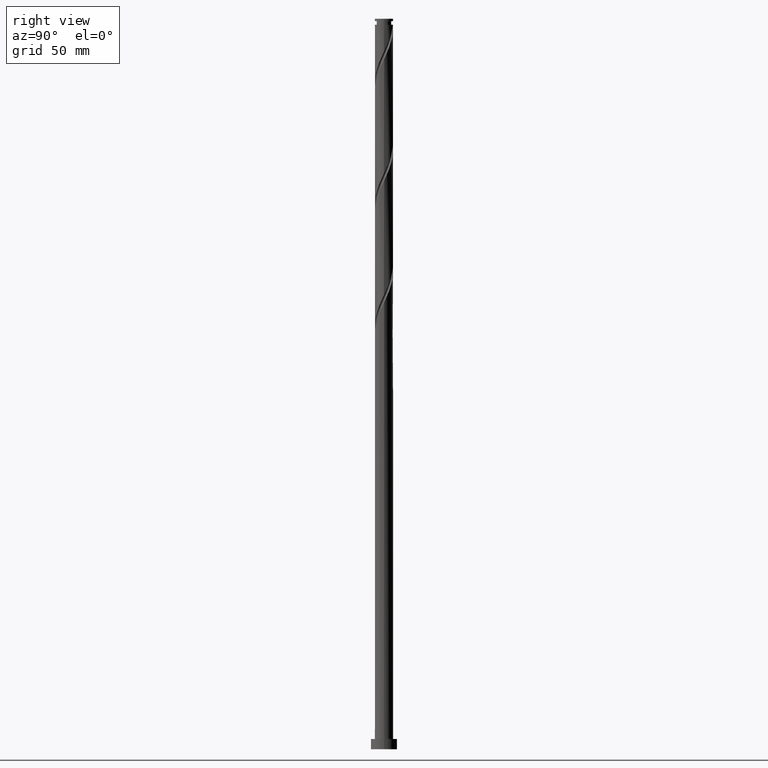
[diagram: clean part render]
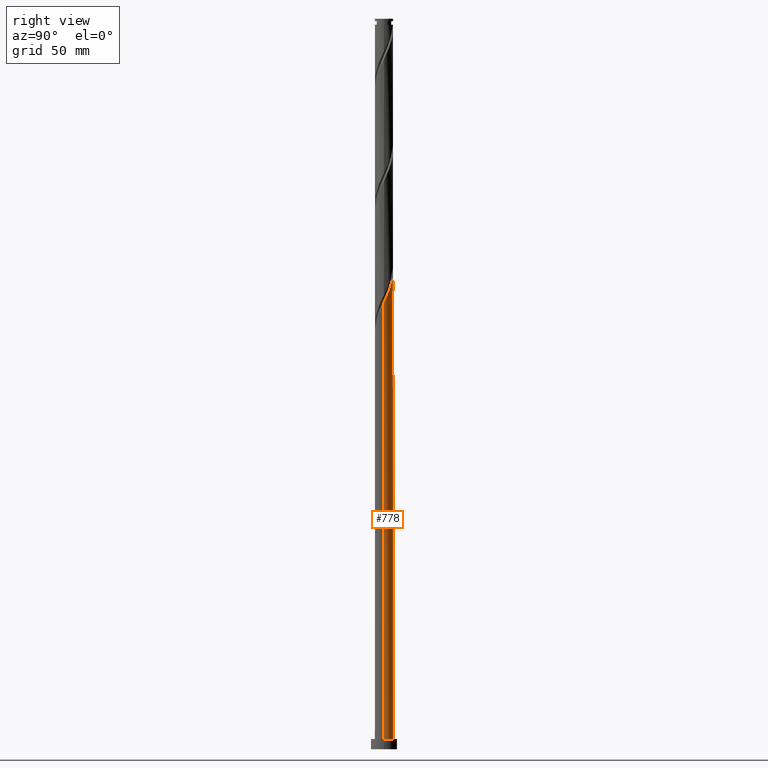
[diagram: same view with one face highlighted and labeled with its STEP entity id]
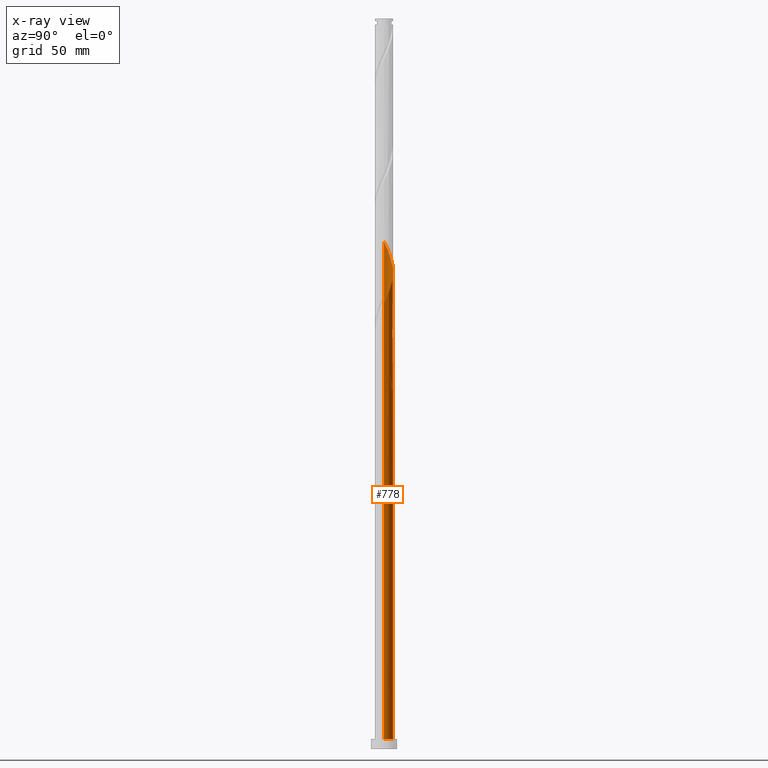
[diagram: x-ray of the same camera — body ghosted, the highlighted face saturated]
A machine part, right view. The second image highlights one B-rep face of the part: STEP entity #778.
The next image is the same camera in x-ray: the body ghosted, the highlighted face saturated — about 0% of this face is hidden behind the body in this view.
In plain terms, the highlighted cylindrical surface (edge-blend (fillet) strip) has radius 6.25 mm, axis along (-0, -0, -1).
Its self-contained STEP definition (entity closure, byte-faithful):
#6 = CARTESIAN_POINT ( 'NONE',  ( -3.492996683547016534, 5.182805627141505056, 334.4116905604971066 ) ) ;
#38 = VERTEX_POINT ( 'NONE', #340 ) ;
#53 = CARTESIAN_POINT ( 'NONE',  ( -1.194875362925336582, 6.134718646121764429, 251.0783572271637638 ) ) ;
#68 = CARTESIAN_POINT ( 'NONE',  ( -5.550432561628097616, 2.938388396464533425, 257.5887738938304210 ) ) ;
#72 = CARTESIAN_POINT ( 'NONE',  ( 6.125000000000008882, 1.243734296383278704, 308.3700238938304210 ) ) ;
#83 = CARTESIAN_POINT ( 'NONE',  ( 0.000000000000000000, 0.000000000000000000, 7.000000000000000000 ) ) ;
#95 = CARTESIAN_POINT ( 'NONE',  ( 5.764669318085877237, 2.414764512974176824, 310.9741905604970498 ) ) ;
#100 = CARTESIAN_POINT ( 'NONE',  ( -4.436994950466251808, 4.401769622496965795, 253.6825238938303926 ) ) ;
#130 = ORIENTED_EDGE ( 'NONE', *, *, #2038, .T. ) ;
#135 = ORIENTED_EDGE ( 'NONE', *, *, #280, .T. ) ;
#157 = CARTESIAN_POINT ( 'NONE',  ( -6.017033694790354659, 1.799092411583237183, 343.5262738938304210 ) ) ;
#217 = CARTESIAN_POINT ( 'NONE',  ( 0.6404744508206482445, 6.247497136254223982, 247.1721072271638491 ) ) ;
#231 = ORIENTED_EDGE ( 'NONE', *, *, #1188, .T. ) ;
#233 = CARTESIAN_POINT ( 'NONE',  ( -5.210481989734504715, 3.451576079800712904, 256.2866905604970498 ) ) ;
#238 = DIRECTION ( 'NONE',  ( -0.000000000000000000, -0.000000000000000000, -1.000000000000000000 ) ) ;
#250 = CARTESIAN_POINT ( 'NONE',  ( -3.964763763136888386, 4.870531417840910038, 257.5887738938304210 ) ) ;
#280 = EDGE_CURVE ( 'NONE', #1926, #1930, #961, .T. ) ;
#300 = ORIENTED_EDGE ( 'NONE', *, *, #1347, .F. ) ;
#304 = CARTESIAN_POINT ( 'NONE',  ( -6.250000000000009770, 7.460911258558398260E-15, 347.3798269158335188 ) ) ;
#313 = CARTESIAN_POINT ( 'NONE',  ( -2.982534884002442155, 5.526835772425972237, 333.1096072271637922 ) ) ;
#324 = CARTESIAN_POINT ( 'NONE',  ( -2.414764512974176824, 5.764669318085877237, 331.8075238938304210 ) ) ;
#331 = DIRECTION ( 'NONE',  ( -0.000000000000000000, -0.000000000000000000, -1.000000000000000000 ) ) ;
#340 = CARTESIAN_POINT ( 'NONE',  ( -6.250000000000009770, 7.460911258558398260E-15, 264.0464935825003181 ) ) ;
#373 = CARTESIAN_POINT ( 'NONE',  ( -1.799092411583232298, 6.017033694790346665, 252.3804405604971066 ) ) ;
#388 = CYLINDRICAL_SURFACE ( 'NONE', #1640, 6.250000000000000000 ) ;
#404 = CARTESIAN_POINT ( 'NONE',  ( -5.182805627141497062, 3.492996683547012982, 261.4950238938303642 ) ) ;
#409 = CARTESIAN_POINT ( 'NONE',  ( -5.783733128209226138, 2.368740404023883528, 258.8908572271637354 ) ) ;
#424 = CARTESIAN_POINT ( 'NONE',  ( 6.249950366853710193, 0.02490806827659989078, 305.7658572271636785 ) ) ;
#426 =( BOUNDED_CURVE ( )  B_SPLINE_CURVE ( 2, ( #566, #545, #1218, #1868, #1196, #1039, #100, #1686, #233, #68, #409, #883, #717, #1206, #1369 ),
 .UNSPECIFIED., .F., .T. ) 
 B_SPLINE_CURVE_WITH_KNOTS ( ( 3, 2, 2, 2, 2, 2, 2, 3 ),
 ( 0.000000000000000000, 0.007812500000000000000, 0.01562500000000000000, 0.02343750000000000347, 0.03125000000000000000, 0.03906250000000000000, 0.04687500000000000694, 0.05452869021808727512 ),
 .UNSPECIFIED. ) 
 CURVE ( )  GEOMETRIC_REPRESENTATION_ITEM ( )  RATIONAL_B_SPLINE_CURVE ( ( 0.9090909090909468082, 0.9047133878838528043, 0.9090909090909468082, 0.9047133878838528043, 0.9090909090909468082, 0.9047133878838528043, 0.9090909090909468082, 0.9047133878838528043, 0.9090909090909468082, 0.9047133878838528043, 0.9090909090909468082, 0.9047133878838528043, 0.9090909090909468082, 0.9048023726119446275, 0.9089165573359502259 ) ) 
 REPRESENTATION_ITEM ( '' )  );
#436 = CARTESIAN_POINT ( 'NONE',  ( 6.250000000000008882, 7.878409165607379030E-15, 305.7131602491668900 ) ) ;
#482 = CARTESIAN_POINT ( 'NONE',  ( -6.250000000000009770, 7.460911258558398260E-15, 347.3798269158335188 ) ) ;
#494 = CARTESIAN_POINT ( 'NONE',  ( -5.550432561628097616, 2.938388396464533425, 340.9221072271638491 ) ) ;
#529 = CARTESIAN_POINT ( 'NONE',  ( -2.938388396464528540, 5.550432561628093175, 254.9846072271638207 ) ) ;
#541 = CARTESIAN_POINT ( 'NONE',  ( -5.764669318085871019, 2.414764512974175492, 264.0991905604970498 ) ) ;
#545 = CARTESIAN_POINT ( 'NONE',  ( -1.846994141945911938, 6.002502863745784900, 247.1721072271638207 ) ) ;
#562 = CARTESIAN_POINT ( 'NONE',  ( -6.249950366853703088, 0.02490806827660372799, 269.3075238938303642 ) ) ;
#566 = CARTESIAN_POINT ( 'NONE',  ( -1.243734296383278481, 6.125000000000008882, 245.8700238938303926 ) ) ;
#579 = CARTESIAN_POINT ( 'NONE',  ( 3.451576079800713792, 5.210481989734502939, 318.7866905604970498 ) ) ;
#606 = CARTESIAN_POINT ( 'NONE',  ( 6.250000000000000000, 7.654042494670957606E-16, 7.000000000000000000 ) ) ;
#610 = CARTESIAN_POINT ( 'NONE',  ( -5.783733128209226138, 2.368740404023883528, 342.2241905604970498 ) ) ;
#643 =( BOUNDED_CURVE ( )  B_SPLINE_CURVE ( 2, ( #749, #889, #562, #2004, #1995, #1691, #541, #1213, #404, #1842, #713, #250, #1671, #529, #1864, #373, #53, #2029, #1058, #217, #739 ),
 .UNSPECIFIED., .F., .T. ) 
 B_SPLINE_CURVE_WITH_KNOTS ( ( 3, 2, 2, 2, 2, 2, 2, 2, 2, 2, 3 ),
 ( 0.9295286902180875943, 0.9296875000000000000, 0.9375000000000000000, 0.9453125000000000000, 0.9531250000000000000, 0.9609375000000000000, 0.9687500000000000000, 0.9765625000000000000, 0.9843750000000000000, 0.9921875000000000000, 1.000000000000000000 ),
 .UNSPECIFIED. ) 
 CURVE ( )  GEOMETRIC_REPRESENTATION_ITEM ( )  RATIONAL_B_SPLINE_CURVE ( ( 0.9089165573359447858, 0.9090019243628493228, 0.9090909090909409240, 0.9047133878838470311, 0.9090909090909409240, 0.9047133878838470311, 0.9090909090909409240, 0.9047133878838470311, 0.9090909090909409240, 0.9047133878838470311, 0.9090909090909409240, 0.9047133878838470311, 0.9090909090909409240, 0.9047133878838470311, 0.9090909090909409240, 0.9047133878838470311, 0.9090909090909409240, 0.9047133878838470311, 0.9090909090909409240, 0.9047133878838470311, 0.9090909090909409240 ) ) 
 REPRESENTATION_ITEM ( '' )  );
#644 = CARTESIAN_POINT ( 'NONE',  ( -6.134718646121773311, 1.194875362925339690, 344.8283572271637354 ) ) ;
#654 = EDGE_CURVE ( 'NONE', #1277, #756, #1987, .T. ) ;
#695 = VERTEX_POINT ( 'NONE', #1156 ) ;
#713 = CARTESIAN_POINT ( 'NONE',  ( -4.401769622496961354, 4.436994950466248255, 258.8908572271637354 ) ) ;
#717 = CARTESIAN_POINT ( 'NONE',  ( -6.134718646121773311, 1.194875362925339690, 261.4950238938303642 ) ) ;
#739 = CARTESIAN_POINT ( 'NONE',  ( 1.243734296383280702, 6.125000000000000000, 245.8700238938303926 ) ) ;
#745 = CARTESIAN_POINT ( 'NONE',  ( 5.526835772425973126, 2.982534884002440823, 312.2762738938303642 ) ) ;
#749 = CARTESIAN_POINT ( 'NONE',  ( -6.250000000000000000, 4.652678684671355599E-14, 269.3602208718271527 ) ) ;
#756 = VERTEX_POINT ( 'NONE', #1857 ) ;
#767 = CARTESIAN_POINT ( 'NONE',  ( 6.247497136254232863, 0.6404744508206492437, 307.0679405604970498 ) ) ;
#778 = ADVANCED_FACE ( 'NONE', ( #1358 ), #388, .T. ) ;
#800 = ORIENTED_EDGE ( 'NONE', *, *, #1720, .F. ) ;
#815 = EDGE_CURVE ( 'NONE', #695, #38, #426, .T. ) ;
#819 = CARTESIAN_POINT ( 'NONE',  ( -6.250000000000000000, 0.000000000000000000, 500.0000000000000000 ) ) ;
#883 = CARTESIAN_POINT ( 'NONE',  ( -6.017033694790354659, 1.799092411583237183, 260.1929405604970498 ) ) ;
#889 = CARTESIAN_POINT ( 'NONE',  ( -6.249999999999999112, 0.01245408358916205542, 269.3338673173099664 ) ) ;
#905 = CARTESIAN_POINT ( 'NONE',  ( 6.002502863745784900, 1.846994141945908829, 309.6721072271637922 ) ) ;
#925 = DIRECTION ( 'NONE',  ( 0.000000000000000000, 0.000000000000000000, 1.000000000000000000 ) ) ;
#946 = EDGE_LOOP ( 'NONE', ( #800, #231, #135, #1950, #1764, #130, #300, #1425 ) ) ;
#951 = DIRECTION ( 'NONE',  ( -1.479114197289397976E-29, -3.330669073875472777E-14, -1.000000000000000000 ) ) ;
#961 = CIRCLE ( 'NONE', #2015, 6.250000000000000000 ) ;
#1022 = LINE ( 'NONE', #1181, #1438 ) ;
#1034 = DIRECTION ( 'NONE',  ( 1.000000000000000000, 0.000000000000000000, 0.000000000000000000 ) ) ;
#1039 = CARTESIAN_POINT ( 'NONE',  ( -4.003458483091592690, 4.838775481857040539, 252.3804405604971350 ) ) ;
#1058 = CARTESIAN_POINT ( 'NONE',  ( 0.02490806827660350942, 6.249950366853703088, 248.4741905604970498 ) ) ;
#1074 = DIRECTION ( 'NONE',  ( -0.000000000000000000, -0.000000000000000000, -1.000000000000000000 ) ) ;
#1077 = CARTESIAN_POINT ( 'NONE',  ( 1.799092411583237405, 6.017033694790354659, 322.6929405604971066 ) ) ;
#1096 = CARTESIAN_POINT ( 'NONE',  ( 3.964763763136894603, 4.870531417840916255, 317.4846072271637922 ) ) ;
#1107 = CARTESIAN_POINT ( 'NONE',  ( -1.243734296383278481, 6.125000000000008882, 329.2033572271636217 ) ) ;
#1136 = AXIS2_PLACEMENT_3D ( 'NONE', #1765, #951, #1602 ) ;
#1156 = CARTESIAN_POINT ( 'NONE',  ( -1.243734296383278481, 6.125000000000008882, 245.8700238938303926 ) ) ;
#1175 = DIRECTION ( 'NONE',  ( -0.000000000000000000, -0.000000000000000000, -1.000000000000000000 ) ) ;
#1181 = CARTESIAN_POINT ( 'NONE',  ( -6.250000000000000000, 0.000000000000000000, 500.0000000000000000 ) ) ;
#1188 = EDGE_CURVE ( 'NONE', #1453, #1926, #1485, .T. ) ;
#1196 = CARTESIAN_POINT ( 'NONE',  ( -3.492996683547016534, 5.182805627141505056, 251.0783572271637638 ) ) ;
#1206 = CARTESIAN_POINT ( 'NONE',  ( -6.250000000000010658, 0.6029988433061305164, 262.7705134770842506 ) ) ;
#1213 = CARTESIAN_POINT ( 'NONE',  ( -5.526835772425965132, 2.982534884002439046, 262.7971072271637354 ) ) ;
#1218 = CARTESIAN_POINT ( 'NONE',  ( -2.414764512974176824, 5.764669318085877237, 248.4741905604971066 ) ) ;
#1226 = DIRECTION ( 'NONE',  ( -1.000000000000000000, 0.000000000000000000, 0.000000000000000000 ) ) ;
#1230 = CARTESIAN_POINT ( 'NONE',  ( 2.938388396464535646, 5.550432561628096728, 320.0887738938304210 ) ) ;
#1277 = VERTEX_POINT ( 'NONE', #482 ) ;
#1298 = CIRCLE ( 'NONE', #1136, 6.250000000000000000 ) ;
#1305 = CARTESIAN_POINT ( 'NONE',  ( -0.02490806827659946751, 6.249950366853710193, 326.5991905604970498 ) ) ;
#1307 = EDGE_CURVE ( 'NONE', #38, #1930, #1022, .T. ) ;
#1347 = EDGE_CURVE ( 'NONE', #756, #1991, #643, .T. ) ;
#1358 = FACE_OUTER_BOUND ( 'NONE', #946, .T. ) ;
#1368 = VECTOR ( 'NONE', #1175, 1000.000000000000000 ) ;
#1369 = CARTESIAN_POINT ( 'NONE',  ( -6.250000000000008882, 7.460911258558398260E-15, 264.0464935825003181 ) ) ;
#1381 = CARTESIAN_POINT ( 'NONE',  ( 0.000000000000000000, 0.000000000000000000, 500.0000000000000000 ) ) ;
#1392 = CARTESIAN_POINT ( 'NONE',  ( 4.838775481857040539, 4.003458483091592690, 314.8804405604970498 ) ) ;
#1412 = CARTESIAN_POINT ( 'NONE',  ( 6.250000000000007105, 0.01245408358914516789, 305.7395138036841331 ) ) ;
#1425 = ORIENTED_EDGE ( 'NONE', *, *, #654, .F. ) ;
#1427 = CARTESIAN_POINT ( 'NONE',  ( 1.243734296383280702, 6.125000000000000000, 245.8700238938303926 ) ) ;
#1434 = CARTESIAN_POINT ( 'NONE',  ( -4.436994950466251808, 4.401769622496965795, 337.0158572271637922 ) ) ;
#1438 = VECTOR ( 'NONE', #238, 1000.000000000000000 ) ;
#1453 = VERTEX_POINT ( 'NONE', #436 ) ;
#1485 = LINE ( 'NONE', #1643, #2053 ) ;
#1521 =( BOUNDED_CURVE ( )  B_SPLINE_CURVE ( 2, ( #1861, #1412, #424, #767, #72, #905, #95, #745, #1900, #1392, #2045, #1096, #579, #1230, #1882, #1077, #1718, #1567, #1305, #1769, #1107, #2071, #324, #313, #6, #2101, #1434, #1956, #1738, #494, #610, #157, #644, #1945, #304 ),
 .UNSPECIFIED., .F., .T. ) 
 B_SPLINE_CURVE_WITH_KNOTS ( ( 3, 2, 2, 2, 2, 2, 2, 2, 2, 2, 2, 2, 2, 2, 2, 2, 2, 3 ),
 ( 0.1795286902180874278, 0.1796875000000000000, 0.1875000000000000000, 0.1953125000000000000, 0.2031250000000000000, 0.2109375000000000000, 0.2187500000000000000, 0.2265625000000000000, 0.2343750000000000000, 0.2421875000000000000, 0.2500000000000000000, 0.2578125000000000000, 0.2656250000000000000, 0.2734375000000000000, 0.2812500000000000000, 0.2890625000000000000, 0.2968750000000000000, 0.3045286902180873723 ),
 .UNSPECIFIED. ) 
 CURVE ( )  GEOMETRIC_REPRESENTATION_ITEM ( )  RATIONAL_B_SPLINE_CURVE ( ( 0.9089165573359504480, 0.9090019243628550960, 0.9090909090909468082, 0.9047133878838528043, 0.9090909090909468082, 0.9047133878838528043, 0.9090909090909468082, 0.9047133878838528043, 0.9090909090909468082, 0.9047133878838528043, 0.9090909090909468082, 0.9047133878838528043, 0.9090909090909468082, 0.9047133878838528043, 0.9090909090909468082, 0.9047133878838528043, 0.9090909090909468082, 0.9047133878838528043, 0.9090909090909468082, 0.9047133878838528043, 0.9090909090909468082, 0.9047133878838528043, 0.9090909090909468082, 0.9047133878838528043, 0.9090909090909468082, 0.9047133878838528043, 0.9090909090909468082, 0.9047133878838528043, 0.9090909090909468082, 0.9047133878838528043, 0.9090909090909468082, 0.9047133878838528043, 0.9090909090909468082, 0.9048023726119445165, 0.9089165573359504480 ) ) 
 REPRESENTATION_ITEM ( '' )  );
#1567 = CARTESIAN_POINT ( 'NONE',  ( 0.5906583142674440845, 6.252403597453189299, 325.2971072271637922 ) ) ;
#1602 = DIRECTION ( 'NONE',  ( 0.000000000000000000, 1.000000000000000000, -3.552713678800500929E-14 ) ) ;
#1640 = AXIS2_PLACEMENT_3D ( 'NONE', #1381, #1074, #1226 ) ;
#1643 = CARTESIAN_POINT ( 'NONE',  ( 6.250000000000000000, 7.654042494670957606E-16, 500.0000000000000000 ) ) ;
#1671 = CARTESIAN_POINT ( 'NONE',  ( -3.451576079800708019, 5.210481989734499386, 256.2866905604970498 ) ) ;
#1686 = CARTESIAN_POINT ( 'NONE',  ( -4.870531417840916255, 3.964763763136895491, 254.9846072271637638 ) ) ;
#1691 = CARTESIAN_POINT ( 'NONE',  ( -6.002502863745775130, 1.846994141945911272, 265.4012738938303642 ) ) ;
#1718 = CARTESIAN_POINT ( 'NONE',  ( 1.194875362925343909, 6.134718646121773311, 323.9950238938303642 ) ) ;
#1720 = EDGE_CURVE ( 'NONE', #1453, #1277, #1521, .T. ) ;
#1738 = CARTESIAN_POINT ( 'NONE',  ( -5.210481989734504715, 3.451576079800712904, 339.6200238938303642 ) ) ;
#1764 = ORIENTED_EDGE ( 'NONE', *, *, #815, .F. ) ;
#1765 = CARTESIAN_POINT ( 'NONE',  ( 0.000000000000000000, 0.000000000000000000, 245.8700238938306200 ) ) ;
#1769 = CARTESIAN_POINT ( 'NONE',  ( -0.6404744508206486886, 6.247497136254232863, 327.9012738938304210 ) ) ;
#1842 = CARTESIAN_POINT ( 'NONE',  ( -4.838775481857032545, 4.003458483091587361, 260.1929405604971066 ) ) ;
#1857 = CARTESIAN_POINT ( 'NONE',  ( -6.250000000000000000, 4.652678684671355599E-14, 269.3602208718271527 ) ) ;
#1861 = CARTESIAN_POINT ( 'NONE',  ( 6.250000000000008882, 7.878409165607379030E-15, 305.7131602491668900 ) ) ;
#1864 = CARTESIAN_POINT ( 'NONE',  ( -2.368740404023879975, 5.783733128209219032, 253.6825238938303926 ) ) ;
#1868 = CARTESIAN_POINT ( 'NONE',  ( -2.982534884002442155, 5.526835772425972237, 249.7762738938304210 ) ) ;
#1882 = CARTESIAN_POINT ( 'NONE',  ( 2.368740404023883084, 5.783733128209226138, 321.3908572271637354 ) ) ;
#1900 = CARTESIAN_POINT ( 'NONE',  ( 5.182805627141504168, 3.492996683547017867, 313.5783572271637922 ) ) ;
#1926 = VERTEX_POINT ( 'NONE', #606 ) ;
#1930 = VERTEX_POINT ( 'NONE', #2076 ) ;
#1945 = CARTESIAN_POINT ( 'NONE',  ( -6.250000000000012434, 0.6029988433061229669, 346.1038468104175649 ) ) ;
#1950 = ORIENTED_EDGE ( 'NONE', *, *, #1307, .F. ) ;
#1956 = CARTESIAN_POINT ( 'NONE',  ( -4.870531417840916255, 3.964763763136895491, 338.3179405604970498 ) ) ;
#1987 = LINE ( 'NONE', #819, #1368 ) ;
#1991 = VERTEX_POINT ( 'NONE', #1427 ) ;
#1995 = CARTESIAN_POINT ( 'NONE',  ( -6.125000000000000000, 1.243734296383279592, 266.7033572271637922 ) ) ;
#2004 = CARTESIAN_POINT ( 'NONE',  ( -6.247497136254223982, 0.6404744508206479114, 268.0054405604970498 ) ) ;
#2015 = AXIS2_PLACEMENT_3D ( 'NONE', #83, #925, #1034 ) ;
#2029 = CARTESIAN_POINT ( 'NONE',  ( -0.5906583142674413089, 6.252403597453181305, 249.7762738938304494 ) ) ;
#2038 = EDGE_CURVE ( 'NONE', #695, #1991, #1298, .T. ) ;
#2045 = CARTESIAN_POINT ( 'NONE',  ( 4.401769622496969347, 4.436994950466251808, 316.1825238938303073 ) ) ;
#2053 = VECTOR ( 'NONE', #331, 1000.000000000000000 ) ;
#2071 = CARTESIAN_POINT ( 'NONE',  ( -1.846994141945911938, 6.002502863745784900, 330.5054405604971066 ) ) ;
#2076 = CARTESIAN_POINT ( 'NONE',  ( -6.250000000000000000, 0.000000000000000000, 7.000000000000000000 ) ) ;
#2101 = CARTESIAN_POINT ( 'NONE',  ( -4.003458483091592690, 4.838775481857040539, 335.7137738938304778 ) ) ;